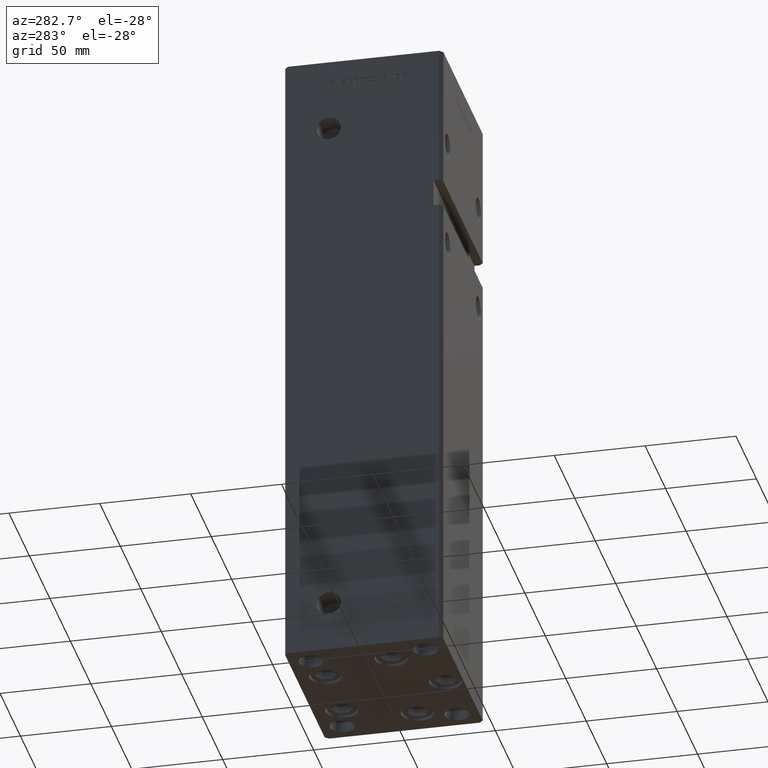
[diagram: clean part render]
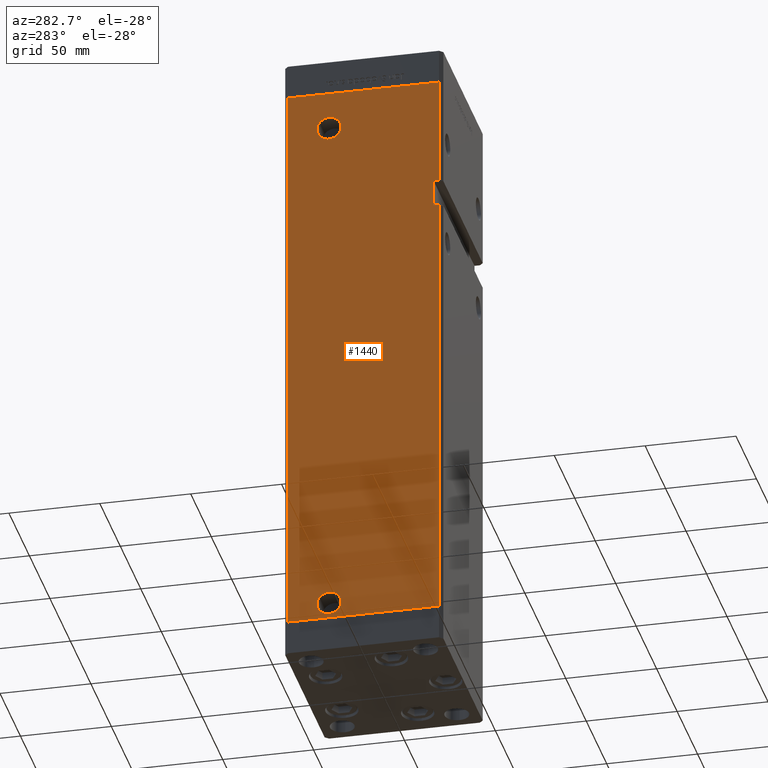
[diagram: same view with one face highlighted and labeled with its STEP entity id]
A machine part, auxiliary view. The second image highlights one B-rep face of the part: STEP entity #1440.
In plain terms, the highlighted planar face has unit normal (1, 0, 0).
Its self-contained STEP definition (entity closure, byte-faithful):
#229 = CARTESIAN_POINT ( 'NONE',  ( -50.00000000000000711, 19.00000000000000000, 297.5000000000000000 ) ) ;
#625 = ORIENTED_EDGE ( 'NONE', *, *, #42035, .F. ) ;
#936 = DIRECTION ( 'NONE',  ( 0.000000000000000000, -1.000000000000000000, 0.000000000000000000 ) ) ;
#1075 = ORIENTED_EDGE ( 'NONE', *, *, #26915, .T. ) ;
#1440 = ADVANCED_FACE ( 'NONE', ( #13082, #29507, #30035 ), #1510, .F. ) ;
#1481 = VECTOR ( 'NONE', #7185, 1000.000000000000000 ) ;
#1510 = PLANE ( 'NONE',  #26898 ) ;
#1574 = DIRECTION ( 'NONE',  ( 0.000000000000000000, -1.000000000000000000, 0.000000000000000000 ) ) ;
#3308 = DIRECTION ( 'NONE',  ( -0.000000000000000000, -1.000000000000000000, -0.000000000000000000 ) ) ;
#3792 = VECTOR ( 'NONE', #7276, 1000.000000000000000 ) ;
#3933 = EDGE_CURVE ( 'NONE', #50208, #16414, #38137, .T. ) ;
#4745 = EDGE_CURVE ( 'NONE', #24042, #44975, #44165, .T. ) ;
#5593 = VERTEX_POINT ( 'NONE', #51242 ) ;
#5619 = EDGE_CURVE ( 'NONE', #50208, #16234, #10569, .T. ) ;
#5757 = CARTESIAN_POINT ( 'NONE',  ( -50.00000000000001421, 41.49999999999999289, 318.5000000000000000 ) ) ;
#6974 = ORIENTED_EDGE ( 'NONE', *, *, #35507, .F. ) ;
#7185 = DIRECTION ( 'NONE',  ( -0.000000000000000000, -1.000000000000000000, -0.000000000000000000 ) ) ;
#7276 = DIRECTION ( 'NONE',  ( -0.000000000000000000, -0.000000000000000000, -1.000000000000000000 ) ) ;
#8647 = EDGE_CURVE ( 'NONE', #5593, #30249, #33141, .T. ) ;
#8868 = VERTEX_POINT ( 'NONE', #41891 ) ;
#9326 = CARTESIAN_POINT ( 'NONE',  ( -50.00000000000001421, 41.49999999999999289, 0.000000000000000000 ) ) ;
#9333 = ORIENTED_EDGE ( 'NONE', *, *, #20246, .F. ) ;
#9534 = DIRECTION ( 'NONE',  ( -0.000000000000000000, -0.000000000000000000, -1.000000000000000000 ) ) ;
#10569 = LINE ( 'NONE', #43423, #39044 ) ;
#10595 = ORIENTED_EDGE ( 'NONE', *, *, #33931, .F. ) ;
#11464 = VECTOR ( 'NONE', #13637, 1000.000000000000000 ) ;
#13049 = CARTESIAN_POINT ( 'NONE',  ( -50.00000000000000711, 19.00000000000000000, 297.5000000000000000 ) ) ;
#13082 = FACE_OUTER_BOUND ( 'NONE', #52137, .T. ) ;
#13637 = DIRECTION ( 'NONE',  ( 0.000000000000000000, 0.000000000000000000, -1.000000000000000000 ) ) ;
#13691 = LINE ( 'NONE', #21244, #46389 ) ;
#14048 = CIRCLE ( 'NONE', #44144, 6.580000000000044480 ) ;
#14270 = DIRECTION ( 'NONE',  ( -0.000000000000000000, -0.000000000000000000, -1.000000000000000000 ) ) ;
#15768 = CARTESIAN_POINT ( 'NONE',  ( -49.99999999999998579, -41.49999999999999289, 318.5000000000000000 ) ) ;
#15922 = ORIENTED_EDGE ( 'NONE', *, *, #4745, .F. ) ;
#16234 = VERTEX_POINT ( 'NONE', #27033 ) ;
#16414 = VERTEX_POINT ( 'NONE', #40232 ) ;
#17878 = CARTESIAN_POINT ( 'NONE',  ( -49.99999999999998579, -41.49999999999999289, 318.5000000000000000 ) ) ;
#18125 = EDGE_CURVE ( 'NONE', #16414, #24042, #32223, .T. ) ;
#18302 = CARTESIAN_POINT ( 'NONE',  ( -49.99999999999998579, -41.49999999999999289, 0.000000000000000000 ) ) ;
#19115 = CARTESIAN_POINT ( 'NONE',  ( -49.99999999999998579, -38.50000000000000000, 259.0000000000000000 ) ) ;
#20246 = EDGE_CURVE ( 'NONE', #34501, #16234, #46427, .T. ) ;
#20264 = ORIENTED_EDGE ( 'NONE', *, *, #8647, .F. ) ;
#20331 = DIRECTION ( 'NONE',  ( -1.000000000000000000, -2.275047181608927644E-16, 0.000000000000000000 ) ) ;
#21244 = CARTESIAN_POINT ( 'NONE',  ( -50.00000000000001421, 41.49999999999999289, 0.000000000000000000 ) ) ;
#21500 = DIRECTION ( 'NONE',  ( 3.344045254895050973E-16, -1.000000000000000000, 0.000000000000000000 ) ) ;
#21795 = ORIENTED_EDGE ( 'NONE', *, *, #40735, .F. ) ;
#21946 = DIRECTION ( 'NONE',  ( 1.000000000000000000, 3.344045254895050480E-16, -0.000000000000000000 ) ) ;
#22810 = CARTESIAN_POINT ( 'NONE',  ( -50.00000000000000711, 19.00000000000000000, 9.000000000000007105 ) ) ;
#23015 = VECTOR ( 'NONE', #9534, 1000.000000000000000 ) ;
#23594 = ORIENTED_EDGE ( 'NONE', *, *, #5619, .T. ) ;
#23718 = LINE ( 'NONE', #47427, #46761 ) ;
#23771 = DIRECTION ( 'NONE',  ( 0.000000000000000000, -1.000000000000000000, 0.000000000000000000 ) ) ;
#24042 = VERTEX_POINT ( 'NONE', #37212 ) ;
#24770 = CARTESIAN_POINT ( 'NONE',  ( -49.99999999999998579, -41.49999999999999289, 318.5000000000000000 ) ) ;
#25725 = DIRECTION ( 'NONE',  ( -3.344045254895050480E-16, 1.000000000000000000, 0.000000000000000000 ) ) ;
#26046 = DIRECTION ( 'NONE',  ( -1.000000000000000000, -2.275047181608927644E-16, 0.000000000000000000 ) ) ;
#26898 = AXIS2_PLACEMENT_3D ( 'NONE', #38383, #21946, #25725 ) ;
#26915 = EDGE_CURVE ( 'NONE', #48894, #48670, #51957, .T. ) ;
#27033 = CARTESIAN_POINT ( 'NONE',  ( -49.99999999999998579, -41.49999999999999289, 259.0000000000000000 ) ) ;
#29312 = EDGE_CURVE ( 'NONE', #48670, #44975, #13691, .T. ) ;
#29425 = AXIS2_PLACEMENT_3D ( 'NONE', #52052, #31313, #23771 ) ;
#29468 = CIRCLE ( 'NONE', #29425, 6.580000000000002736 ) ;
#29507 = FACE_BOUND ( 'NONE', #40589, .T. ) ;
#29511 = CIRCLE ( 'NONE', #52723, 6.580000000000044480 ) ;
#30035 = FACE_BOUND ( 'NONE', #30610, .T. ) ;
#30249 = VERTEX_POINT ( 'NONE', #36787 ) ;
#30610 = EDGE_LOOP ( 'NONE', ( #6974, #21795 ) ) ;
#31000 = DIRECTION ( 'NONE',  ( 3.344045254895050973E-16, -1.000000000000000000, 0.000000000000000000 ) ) ;
#31313 = DIRECTION ( 'NONE',  ( -1.000000000000000000, -2.275047181608927644E-16, 0.000000000000000000 ) ) ;
#32223 = LINE ( 'NONE', #44877, #1481 ) ;
#33141 = CIRCLE ( 'NONE', #41740, 6.580000000000002736 ) ;
#33931 = EDGE_CURVE ( 'NONE', #30249, #5593, #29468, .T. ) ;
#34102 = CARTESIAN_POINT ( 'NONE',  ( -49.99999999999998579, -38.50000000000000000, 259.0000000000000000 ) ) ;
#34501 = VERTEX_POINT ( 'NONE', #15768 ) ;
#34782 = ORIENTED_EDGE ( 'NONE', *, *, #18125, .F. ) ;
#35162 = CARTESIAN_POINT ( 'NONE',  ( -50.00000000000000711, 12.41999999999995552, 297.5000000000000000 ) ) ;
#35507 = EDGE_CURVE ( 'NONE', #52534, #8868, #29511, .T. ) ;
#36127 = VECTOR ( 'NONE', #14270, 1000.000000000000000 ) ;
#36787 = CARTESIAN_POINT ( 'NONE',  ( -50.00000000000000711, 25.58000000000000185, 9.000000000000007105 ) ) ;
#36851 = DIRECTION ( 'NONE',  ( -1.000000000000000000, -2.275047181608927644E-16, 0.000000000000000000 ) ) ;
#37212 = CARTESIAN_POINT ( 'NONE',  ( -49.99999999999998579, -41.49999999999999289, 244.0000000000000000 ) ) ;
#38137 = LINE ( 'NONE', #34102, #11464 ) ;
#38383 = CARTESIAN_POINT ( 'NONE',  ( -50.00000000000001421, 41.49999999999999289, 318.5000000000000000 ) ) ;
#39044 = VECTOR ( 'NONE', #3308, 1000.000000000000000 ) ;
#40232 = CARTESIAN_POINT ( 'NONE',  ( -49.99999999999998579, -38.50000000000000000, 244.0000000000000000 ) ) ;
#40589 = EDGE_LOOP ( 'NONE', ( #20264, #10595 ) ) ;
#40735 = EDGE_CURVE ( 'NONE', #8868, #52534, #14048, .T. ) ;
#41740 = AXIS2_PLACEMENT_3D ( 'NONE', #22810, #26046, #1574 ) ;
#41891 = CARTESIAN_POINT ( 'NONE',  ( -50.00000000000000711, 25.58000000000004448, 297.5000000000000000 ) ) ;
#42035 = EDGE_CURVE ( 'NONE', #48894, #34501, #23718, .T. ) ;
#43423 = CARTESIAN_POINT ( 'NONE',  ( -49.99999999999998579, -38.50000000000000000, 259.0000000000000000 ) ) ;
#44144 = AXIS2_PLACEMENT_3D ( 'NONE', #13049, #20331, #936 ) ;
#44165 = LINE ( 'NONE', #24770, #3792 ) ;
#44877 = CARTESIAN_POINT ( 'NONE',  ( -49.99999999999998579, -38.50000000000000000, 244.0000000000000000 ) ) ;
#44975 = VERTEX_POINT ( 'NONE', #18302 ) ;
#46389 = VECTOR ( 'NONE', #21500, 1000.000000000000000 ) ;
#46427 = LINE ( 'NONE', #17878, #23015 ) ;
#46761 = VECTOR ( 'NONE', #31000, 1000.000000000000000 ) ;
#47427 = CARTESIAN_POINT ( 'NONE',  ( -50.00000000000001421, 41.49999999999999289, 318.5000000000000000 ) ) ;
#47696 = ORIENTED_EDGE ( 'NONE', *, *, #3933, .F. ) ;
#48670 = VERTEX_POINT ( 'NONE', #9326 ) ;
#48894 = VERTEX_POINT ( 'NONE', #5757 ) ;
#49684 = ORIENTED_EDGE ( 'NONE', *, *, #29312, .T. ) ;
#50208 = VERTEX_POINT ( 'NONE', #19115 ) ;
#51242 = CARTESIAN_POINT ( 'NONE',  ( -50.00000000000000711, 12.41999999999999638, 9.000000000000007105 ) ) ;
#51436 = CARTESIAN_POINT ( 'NONE',  ( -50.00000000000001421, 41.49999999999999289, 318.5000000000000000 ) ) ;
#51957 = LINE ( 'NONE', #51436, #36127 ) ;
#52052 = CARTESIAN_POINT ( 'NONE',  ( -50.00000000000000711, 19.00000000000000000, 9.000000000000007105 ) ) ;
#52137 = EDGE_LOOP ( 'NONE', ( #15922, #34782, #47696, #23594, #9333, #625, #1075, #49684 ) ) ;
#52534 = VERTEX_POINT ( 'NONE', #35162 ) ;
#52723 = AXIS2_PLACEMENT_3D ( 'NONE', #229, #36851, #52732 ) ;
#52732 = DIRECTION ( 'NONE',  ( 0.000000000000000000, -1.000000000000000000, 0.000000000000000000 ) ) ;